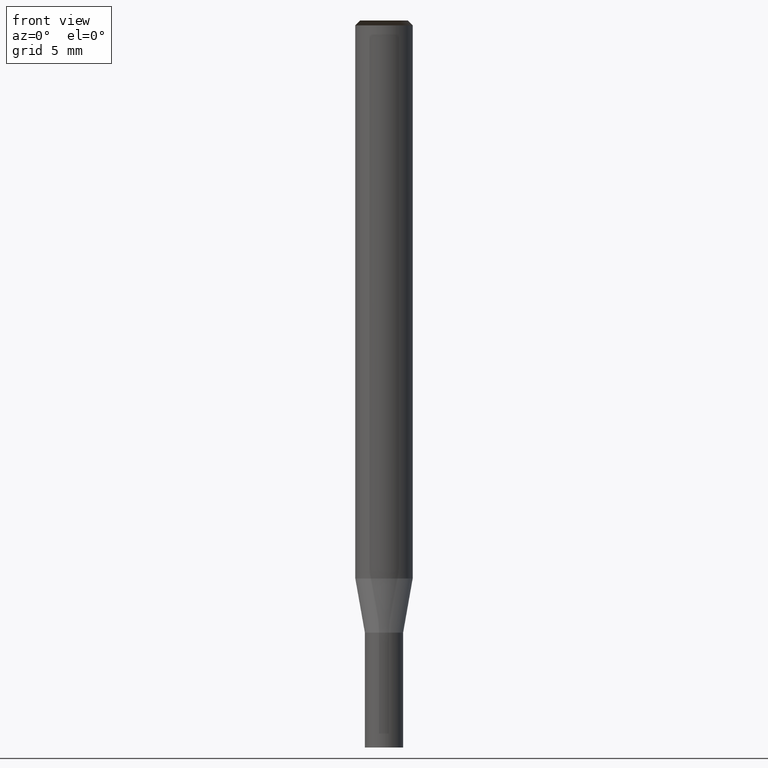
[diagram: clean part render]
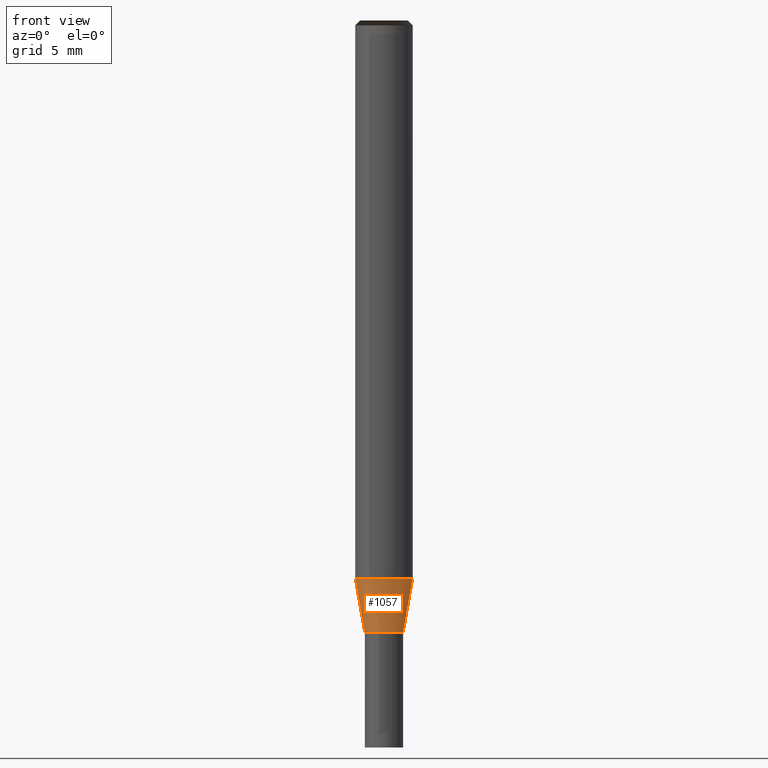
[diagram: same view with one face highlighted and labeled with its STEP entity id]
A machine part, front view. The second image highlights one B-rep face of the part: STEP entity #1057.
In plain terms, the highlighted face is a freeform B-spline surface patch.
Its self-contained STEP definition (entity closure, byte-faithful):
#750=CARTESIAN_POINT('',(1.0,0.0,-3.2));
#754=CARTESIAN_POINT('',(-1.0,0.0,-3.2));
#759=CARTESIAN_POINT('',(-1.0,-1.0,-3.2));
#760=CARTESIAN_POINT('',(0.0,-1.0,-3.2));
#761=CARTESIAN_POINT('',(1.0,-1.0,-3.2));
#762=CARTESIAN_POINT('',(1.5,0.0,-0.364359090191));
#766=CARTESIAN_POINT('',(-1.5,0.0,-0.364359090191));
#783=CARTESIAN_POINT('',(-1.5,-1.5,-0.364359090191));
#784=CARTESIAN_POINT('',(0.0,-1.5,-0.364359090191));
#785=CARTESIAN_POINT('',(1.5,-1.5,-0.364359090191));
#1038=(
BOUNDED_SURFACE()
B_SPLINE_SURFACE(1,2,(
(#754,#759,#760,#761,#750),
(#766,#783,#784,#785,#762)
), .UNSPECIFIED.,.F.,.F.,.F.)
B_SPLINE_SURFACE_WITH_KNOTS((2,2),(3,2,3),(
0.0,1.0),(
0.0,0.5,1.0), .UNSPECIFIED.)
GEOMETRIC_REPRESENTATION_ITEM()
RATIONAL_B_SPLINE_SURFACE(((1.0,0.707106781187,1.0,0.707106781187,1.0),
(1.0,0.707106781187,1.0,0.707106781187,1.0)
))
REPRESENTATION_ITEM('')
SURFACE()
);
#1039=(
BOUNDED_CURVE()
B_SPLINE_CURVE(2,(#750,#761,#760,#759,#754),.UNSPECIFIED.,.F.,.F.)
B_SPLINE_CURVE_WITH_KNOTS((3,2,3),
(0.0,0.5,1.0),.UNSPECIFIED.)
CURVE()
GEOMETRIC_REPRESENTATION_ITEM()
RATIONAL_B_SPLINE_CURVE((1.0,0.707106781187,1.0,0.707106781187,1.0))
REPRESENTATION_ITEM('')
);
#1040=(
BOUNDED_CURVE()
B_SPLINE_CURVE(1,(#754,#766),.UNSPECIFIED.,.F.,.F.)
B_SPLINE_CURVE_WITH_KNOTS((2,2),
(0.0,1.0),.UNSPECIFIED.)
CURVE()
GEOMETRIC_REPRESENTATION_ITEM()
RATIONAL_B_SPLINE_CURVE((1.0,1.0))
REPRESENTATION_ITEM('')
);
#1041=(
BOUNDED_CURVE()
B_SPLINE_CURVE(2,(#766,#783,#784,#785,#762),.UNSPECIFIED.,.F.,.F.)
B_SPLINE_CURVE_WITH_KNOTS((3,2,3),
(0.0,0.5,1.0),.UNSPECIFIED.)
CURVE()
GEOMETRIC_REPRESENTATION_ITEM()
RATIONAL_B_SPLINE_CURVE((1.0,0.707106781187,1.0,0.707106781187,1.0))
REPRESENTATION_ITEM('')
);
#1042=(
BOUNDED_CURVE()
B_SPLINE_CURVE(1,(#762,#750),.UNSPECIFIED.,.F.,.F.)
B_SPLINE_CURVE_WITH_KNOTS((2,2),
(0.0,1.0),.UNSPECIFIED.)
CURVE()
GEOMETRIC_REPRESENTATION_ITEM()
RATIONAL_B_SPLINE_CURVE((1.0,1.0))
REPRESENTATION_ITEM('')
);
#1043=VERTEX_POINT('',#750);
#1044=VERTEX_POINT('',#754);
#1045=VERTEX_POINT('',#762);
#1046=VERTEX_POINT('',#766);
#1047=EDGE_CURVE('',#1043,#1044,#1039,.T.);
#1048=EDGE_CURVE('',#1044,#1046,#1040,.T.);
#1049=EDGE_CURVE('',#1046,#1045,#1041,.T.);
#1050=EDGE_CURVE('',#1045,#1043,#1042,.T.);
#1051=ORIENTED_EDGE('',*,*,#1047,.T.);
#1052=ORIENTED_EDGE('',*,*,#1048,.T.);
#1053=ORIENTED_EDGE('',*,*,#1049,.T.);
#1054=ORIENTED_EDGE('',*,*,#1050,.T.);
#1055=EDGE_LOOP('',(#1051,#1052,#1053,#1054));
#1056=FACE_OUTER_BOUND('',#1055,.T.);
#1057=ADVANCED_FACE('',(#1056),#1038,.T.);